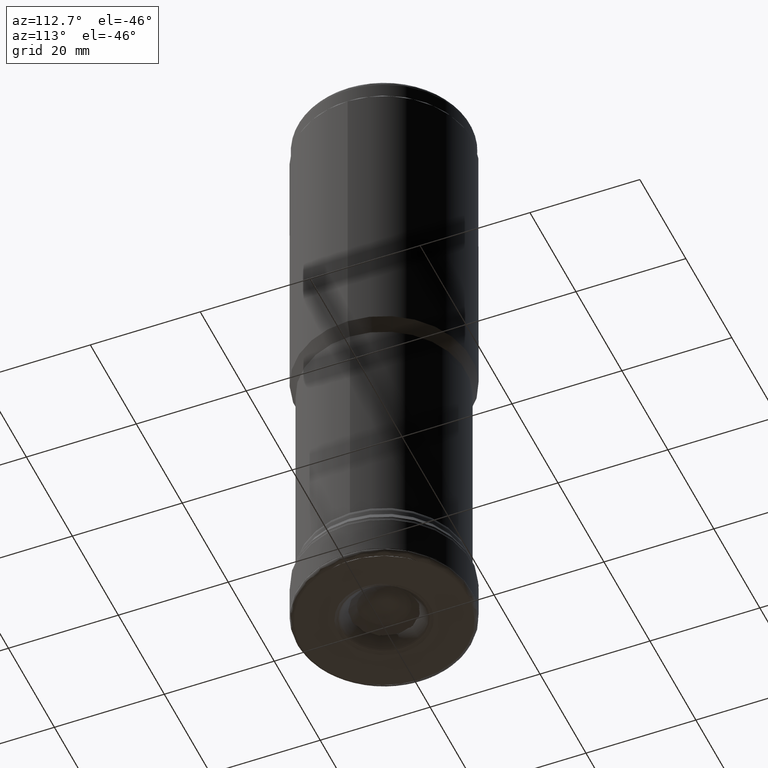
[diagram: clean part render]
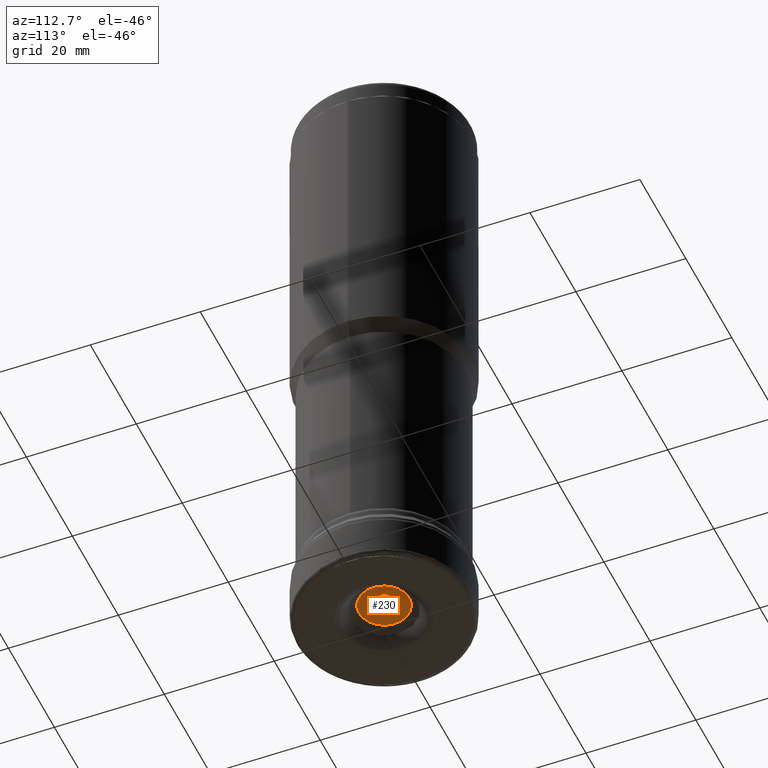
[diagram: same view with one face highlighted and labeled with its STEP entity id]
A machine part, auxiliary view. The second image highlights one B-rep face of the part: STEP entity #230.
In plain terms, the highlighted face is a freeform B-spline surface patch.
Its self-contained STEP definition (entity closure, byte-faithful):
#192=(
BOUNDED_SURFACE()
B_SPLINE_SURFACE(3,2,((#1965,#1966,#1967),(#1968,#1969,#1970),(#1971,#1972,
#1973),(#1974,#1975,#1976),(#1977,#1978,#1979),(#1980,#1981,#1982),(#1983,
#1984,#1985),(#1986,#1987,#1988),(#1989,#1990,#1991),(#1992,#1993,#1994),
(#1995,#1996,#1997),(#1998,#1999,#2000),(#2001,#2002,#2003),(#2004,#2005,
#2006),(#2007,#2008,#2009),(#2010,#2011,#2012),(#2013,#2014,#2015),(#2016,
#2017,#2018)),.UNSPECIFIED.,.T.,.F.,.F.)
B_SPLINE_SURFACE_WITH_KNOTS((1,3,2,2,2,2,2,2,2,3,1),(3,3),(-0.125,0.,0.125,
0.25,0.375,0.5,0.625,0.75,0.875,1.,1.125),(0.,1.),.UNSPECIFIED.)
GEOMETRIC_REPRESENTATION_ITEM()
RATIONAL_B_SPLINE_SURFACE(((1.,0.955059659642134,1.),(1.,0.955059659642134,
1.),(1.,0.955059659642134,1.),(1.,0.955059659642134,1.),(1.,0.955059659642134,
1.),(1.,0.955059659642134,1.),(1.,0.955059659642134,1.),(1.,0.955059659642134,
1.),(1.,0.955059659642134,1.),(1.,0.955059659642134,1.),(1.,0.955059659642134,
1.),(1.,0.955059659642134,1.),(1.,0.955059659642134,1.),(1.,0.955059659642134,
1.),(1.,0.955059659642134,1.),(1.,0.955059659642134,1.),(1.,0.955059659642134,
1.),(1.,0.955059659642134,1.)))
REPRESENTATION_ITEM('')
SURFACE()
);
#230=ADVANCED_FACE('',(#331,#332),#192,.T.);
#331=FACE_BOUND('',#438,.T.);
#332=FACE_BOUND('',#439,.T.);
#438=EDGE_LOOP('',(#573));
#439=EDGE_LOOP('',(#574));
#573=ORIENTED_EDGE('',*,*,#797,.F.);
#574=ORIENTED_EDGE('',*,*,#798,.F.);
#723=VERTEX_POINT('',#1801);
#724=VERTEX_POINT('',#1963);
#797=EDGE_CURVE('',#723,#723,#946,.T.);
#798=EDGE_CURVE('',#724,#724,#947,.T.);
#946=B_SPLINE_CURVE_WITH_KNOTS('',3,(#1783,#1784,#1785,#1786,#1787,#1788,
#1789,#1790,#1791,#1792,#1793,#1794,#1795,#1796,#1797,#1798,#1799,#1800),
 .UNSPECIFIED.,.T.,.F.,(2,2,2,2,2,2,2,2,2,2,2),(-0.125,0.,0.125,0.25,0.375,
0.5,0.625,0.75,0.875,1.,1.125),.UNSPECIFIED.);
#947=B_SPLINE_CURVE_WITH_KNOTS('',3,(#1902,#1903,#1904,#1905,#1906,#1907,
#1908,#1909,#1910,#1911,#1912,#1913,#1914,#1915,#1916,#1917,#1918,#1919,
#1920,#1921,#1922,#1923,#1924,#1925,#1926,#1927,#1928,#1929,#1930,#1931,
#1932,#1933,#1934,#1935,#1936,#1937,#1938,#1939,#1940,#1941,#1942,#1943,
#1944,#1945,#1946,#1947,#1948,#1949,#1950,#1951,#1952,#1953,#1954,#1955,
#1956,#1957,#1958,#1959,#1960,#1961,#1962),.UNSPECIFIED.,.T.,.F.,(1,3,3,
3,3,3,3,3,3,3,3,3,3,3,3,3,3,3,3,3,3,3,1),(-0.0447870784434754,0.,0.00871201610893946,
0.0624218093986897,0.11613160268844,0.16984139597819,0.22355118926794,0.277260982557691,
0.330970775847441,0.384680569137191,0.438390362426941,0.492100155716691,
0.520398910510627,0.579244368528273,0.632954161818023,0.686663955107773,
0.740373748397523,0.794083541687274,0.847793334977024,0.901503128266774,
0.955212921556525,1.,1.00871201610894),.UNSPECIFIED.);
#1783=CARTESIAN_POINT('',(4.5675294193758,-1.20689262017743,3.60381732545264));
#1784=CARTESIAN_POINT('',(4.5675294193758,1.20689262017743,3.60381732545264));
#1785=CARTESIAN_POINT('',(4.06960925463038,2.39084656372007,3.60381732545264));
#1786=CARTESIAN_POINT('',(2.386032244696,4.07243378140103,3.60381732545264));
#1787=CARTESIAN_POINT('',(1.19651405139747,4.5675844736474,3.60381732545265));
#1788=CARTESIAN_POINT('',(-1.19693433885582,4.56747435543585,3.60381732545265));
#1789=CARTESIAN_POINT('',(-2.38414963356814,4.07599479142164,3.60381732545265));
#1790=CARTESIAN_POINT('',(-4.07791519133554,2.38086343732988,3.60381732545265));
#1791=CARTESIAN_POINT('',(-4.56756667869177,1.20285929200984,3.60381732545265));
#1792=CARTESIAN_POINT('',(-4.56749215567783,-1.2031422395092,3.60381732545265));
#1793=CARTESIAN_POINT('',(-4.07474895084695,-2.38553746007733,3.60381732545265));
#1794=CARTESIAN_POINT('',(-2.38156295865409,-4.07707319775195,3.60381732545265));
#1795=CARTESIAN_POINT('',(-1.19003907999775,-4.56745837879921,3.60381732545265));
#1796=CARTESIAN_POINT('',(1.18949369101084,-4.56760044367175,3.60381732545265));
#1797=CARTESIAN_POINT('',(2.38072391262351,-4.07776168374963,3.60381732545265));
#1798=CARTESIAN_POINT('',(4.07501629238896,-2.38542007083838,3.60381732545264));
#1799=CARTESIAN_POINT('',(4.5675294193758,-1.20689262017743,3.60381732545264));
#1800=CARTESIAN_POINT('',(4.5675294193758,1.20689262017743,3.60381732545264));
#1801=CARTESIAN_POINT('',(4.5675294193758,-2.2819393471697E-15,3.60381732545264));
#1902=CARTESIAN_POINT('',(1.67998376705718,-1.11706728733379E-15,4.5));
#1903=CARTESIAN_POINT('',(1.67998376705718,-0.0309268281653289,4.5));
#1904=CARTESIAN_POINT('',(1.67912911759174,-0.0618654405268909,4.5));
#1905=CARTESIAN_POINT('',(1.67742177256887,-0.0927451049250119,4.5));
#1906=CARTESIAN_POINT('',(1.66704138886054,-0.28048850824587,4.5));
#1907=CARTESIAN_POINT('',(1.6241036792486,-0.469028820525165,4.5));
#1908=CARTESIAN_POINT('',(1.55216433413478,-0.642752936528168,4.5));
#1909=CARTESIAN_POINT('',(1.48022498902095,-0.81647705253117,4.5));
#1910=CARTESIAN_POINT('',(1.37729983244459,-0.98017649787178,4.5));
#1911=CARTESIAN_POINT('',(1.25191214137228,-1.12029525030695,4.5));
#1912=CARTESIAN_POINT('',(1.12652445029998,-1.26041400274211,4.5));
#1913=CARTESIAN_POINT('',(0.975215877397686,-1.3808167104665,4.5));
#1914=CARTESIAN_POINT('',(0.810516351374442,-1.47153277290392,4.5));
#1915=CARTESIAN_POINT('',(0.645816825351198,-1.56224883534134,4.5));
#1916=CARTESIAN_POINT('',(0.463183729927273,-1.62578031349956,4.5));
#1917=CARTESIAN_POINT('',(0.27774099114122,-1.65686613804964,4.5));
#1918=CARTESIAN_POINT('',(0.0922982523551668,-1.68795196259972,4.5));
#1919=CARTESIAN_POINT('',(-0.101068869492075,-1.68744951896394,4.5));
#1920=CARTESIAN_POINT('',(-0.286347558966821,-1.65540041471825,4.5));
#1921=CARTESIAN_POINT('',(-0.471626248441567,-1.62335131047256,4.5));
#1922=CARTESIAN_POINT('',(-0.653926720560324,-1.55887159175131,4.5));
#1923=CARTESIAN_POINT('',(-0.818152593965058,-1.46730085209675,4.5));
#1924=CARTESIAN_POINT('',(-0.982378467369793,-1.3757301124422,4.5));
#1925=CARTESIAN_POINT('',(-1.13305929441621,-1.25454271779365,4.5));
#1926=CARTESIAN_POINT('',(-1.25771713030252,-1.11377424899268,4.5));
#1927=CARTESIAN_POINT('',(-1.38237496618883,-0.973005780191699,4.5));
#1928=CARTESIAN_POINT('',(-1.48444802794193,-0.80877366906406,4.5));
#1929=CARTESIAN_POINT('',(-1.555483600938,-0.634678048138229,4.5));
#1930=CARTESIAN_POINT('',(-1.62651917393407,-0.460582427212397,4.5));
#1931=CARTESIAN_POINT('',(-1.66847650698289,-0.271821524310012,4.5));
#1932=CARTESIAN_POINT('',(-1.67788109509218,-0.0840267118712088,4.5));
#1933=CARTESIAN_POINT('',(-1.68288743831844,0.0159420774320534,4.5));
#1934=CARTESIAN_POINT('',(-1.67890788511646,0.116758696364144,4.5));
#1935=CARTESIAN_POINT('',(-1.66603722330205,0.216021823313271,4.5));
#1936=CARTESIAN_POINT('',(-1.63962186288287,0.419746488952628,4.5));
#1937=CARTESIAN_POINT('',(-1.57413815171309,0.621800649366708,4.5));
#1938=CARTESIAN_POINT('',(-1.47603316845522,0.802291432832009,4.5));
#1939=CARTESIAN_POINT('',(-1.38623767007894,0.967494660184823,4.5));
#1940=CARTESIAN_POINT('',(-1.26668125678891,1.11947281750461,4.5));
#1941=CARTESIAN_POINT('',(-1.12726444715126,1.24564052750558,4.5));
#1942=CARTESIAN_POINT('',(-0.987847637513607,1.37180823750655,4.5));
#1943=CARTESIAN_POINT('',(-0.824725143782702,1.4756453614079,4.5));
#1944=CARTESIAN_POINT('',(-0.651405210587942,1.54855310183232,4.5));
#1945=CARTESIAN_POINT('',(-0.478085277393182,1.62146084225674,4.5));
#1946=CARTESIAN_POINT('',(-0.28978752698156,1.66545008470322,4.5));
#1947=CARTESIAN_POINT('',(-0.102104977934078,1.67687806087882,4.5));
#1948=CARTESIAN_POINT('',(0.0855775711134045,1.68830603705441,4.5));
#1949=CARTESIAN_POINT('',(0.277821435228277,1.667487944652,4.5));
#1950=CARTESIAN_POINT('',(0.458706816438052,1.61614773895486,4.5));
#1951=CARTESIAN_POINT('',(0.639592197647826,1.56480753325771,4.5));
#1952=CARTESIAN_POINT('',(0.814108138102709,1.48152918800373,4.5));
#1953=CARTESIAN_POINT('',(0.967802896896367,1.37320901917175,4.5));
#1954=CARTESIAN_POINT('',(1.12149765569002,1.26488885033976,4.5));
#1955=CARTESIAN_POINT('',(1.25861032403458,1.12853925393211,4.5));
#1956=CARTESIAN_POINT('',(1.36778654224961,0.975451399310341,4.5));
#1957=CARTESIAN_POINT('',(1.47696276046463,0.822363544688574,4.5));
#1958=CARTESIAN_POINT('',(1.56121374344673,0.648315079806968,4.5));
#1959=CARTESIAN_POINT('',(1.61356263066391,0.467719033716381,4.5));
#1960=CARTESIAN_POINT('',(1.65740352399446,0.31647432893922,4.5));
#1961=CARTESIAN_POINT('',(1.67998376705718,0.157470583447038,4.5));
#1962=CARTESIAN_POINT('',(1.67998376705718,-1.11706728733379E-15,4.5));
#1963=CARTESIAN_POINT('',(1.67998376705718,-1.11706728733379E-15,4.5));
#1965=CARTESIAN_POINT('',(4.220014739955,-1.74751268705722,3.60381732545264));
#1966=CARTESIAN_POINT('',(3.01457880270574,-1.2483403562515,4.5));
#1967=CARTESIAN_POINT('',(1.55216433413478,-0.642752936528168,4.5));
#1968=CARTESIAN_POINT('',(3.75819009974765,-2.86275883284115,3.6038173254527));
#1969=CARTESIAN_POINT('',(2.6846731372692,-2.04501941972677,4.49999999999942));
#1970=CARTESIAN_POINT('',(1.38230053523205,-1.05295180974003,4.5));
#1971=CARTESIAN_POINT('',(2.84888548111887,-3.76391517341968,3.60381733115985));
#1972=CARTESIAN_POINT('',(2.03510895279208,-2.68876285635417,4.5));
#1973=CARTESIAN_POINT('',(1.04784904934872,-1.38440627421398,4.5));
#1974=CARTESIAN_POINT('',(0.646269987947764,-4.67606043285474,3.60381731974544));
#1975=CARTESIAN_POINT('',(0.461664693387569,-3.34035626428181,4.5));
#1976=CARTESIAN_POINT('',(0.237704673953964,-1.71990257878456,4.5));
#1977=CARTESIAN_POINT('',(-0.644865179669385,-4.67616112345217,3.60381732029753));
#1978=CARTESIAN_POINT('',(-0.460661164736929,-3.3404281926299,4.50000000000019));
#1979=CARTESIAN_POINT('',(-0.237187971130036,-1.71993961368153,4.5));
#1980=CARTESIAN_POINT('',(-2.84714432318358,-3.7651166008878,3.60381733060777));
#1981=CARTESIAN_POINT('',(-2.03386515207394,-2.68962109952464,4.49999999999981));
#1982=CARTESIAN_POINT('',(-1.04720863380832,-1.38484817158259,4.5));
#1983=CARTESIAN_POINT('',(-3.75733815330999,-2.86342288124444,3.60381730904933));
#1984=CARTESIAN_POINT('',(-2.68406455449052,-2.04549378756029,4.49999999999981));
#1985=CARTESIAN_POINT('',(-1.38198718449735,-1.05319605508268,4.5));
#1986=CARTESIAN_POINT('',(-4.68114689444066,-0.635329765963133,3.60381734185597));
#1987=CARTESIAN_POINT('',(-3.34398978168217,-0.453849512433733,4.5000000000002));
#1988=CARTESIAN_POINT('',(-1.72177342591885,-0.233680746919465,4.5));
#1989=CARTESIAN_POINT('',(-4.67539673443877,0.648119569992526,3.6038173176324));
#1990=CARTESIAN_POINT('',(-3.33988215050384,0.462985947659406,4.5));
#1991=CARTESIAN_POINT('',(-1.71965846425135,0.238384969242665,4.5));
#1992=CARTESIAN_POINT('',(-3.7643014419531,2.8477057515676,3.60381733327291));
#1993=CARTESIAN_POINT('',(-2.68903878735442,2.03426620943839,4.5));
#1994=CARTESIAN_POINT('',(-1.38454834721524,1.04741513261876,4.5));
#1995=CARTESIAN_POINT('',(-2.8615465257951,3.75876730319417,3.60381734185595));
#1996=CARTESIAN_POINT('',(-2.04415340187102,2.68508545665672,4.50000000000039));
#1997=CARTESIAN_POINT('',(-1.05250590929534,1.38251283269985,4.5));
#1998=CARTESIAN_POINT('',(-0.632992481488749,4.68146356533217,3.60381730904935));
#1999=CARTESIAN_POINT('',(-0.452179873187297,3.34421601125082,4.49999999999962));
#2000=CARTESIAN_POINT('',(-0.232821073094906,1.72188990835068,4.5));
#2001=CARTESIAN_POINT('',(0.64820662219464,4.67569909107268,3.60381733060799));
#2002=CARTESIAN_POINT('',(0.4630481311955,3.34009813389119,4.49999999999962));
#2003=CARTESIAN_POINT('',(0.238416986673045,1.71976967106763,4.5));
#2004=CARTESIAN_POINT('',(2.84983417698723,3.76308106690707,3.6038173202973));
#2005=CARTESIAN_POINT('',(2.03578665825975,2.68816701506201,4.50000000000038));
#2006=CARTESIAN_POINT('',(1.04819799038657,1.38409948389177,4.5));
#2007=CARTESIAN_POINT('',(3.762908712835,2.85021474417358,3.60381731974539));
#2008=CARTESIAN_POINT('',(2.68804389372064,2.03605851754977,4.50000000000019));
#2009=CARTESIAN_POINT('',(1.38403609044033,1.04833796692101,4.5));
#2010=CARTESIAN_POINT('',(4.67583185990804,0.647921550111427,3.6038173311599));
#2011=CARTESIAN_POINT('',(3.34019297741298,0.462844489087509,4.49999999999981));
#2012=CARTESIAN_POINT('',(1.71981850466649,0.238312134208609,4.5));
#2013=CARTESIAN_POINT('',(4.68183938016236,-0.63226654127328,3.60381732545259));
#2014=CARTESIAN_POINT('',(3.34448446814228,-0.451661292776236,4.50000000000057));
#2015=CARTESIAN_POINT('',(1.7220281330375,-0.23255406331631,4.5));
#2016=CARTESIAN_POINT('',(4.220014739955,-1.74751268705722,3.60381732545264));
#2017=CARTESIAN_POINT('',(3.01457880270574,-1.2483403562515,4.5));
#2018=CARTESIAN_POINT('',(1.55216433413478,-0.642752936528168,4.5));